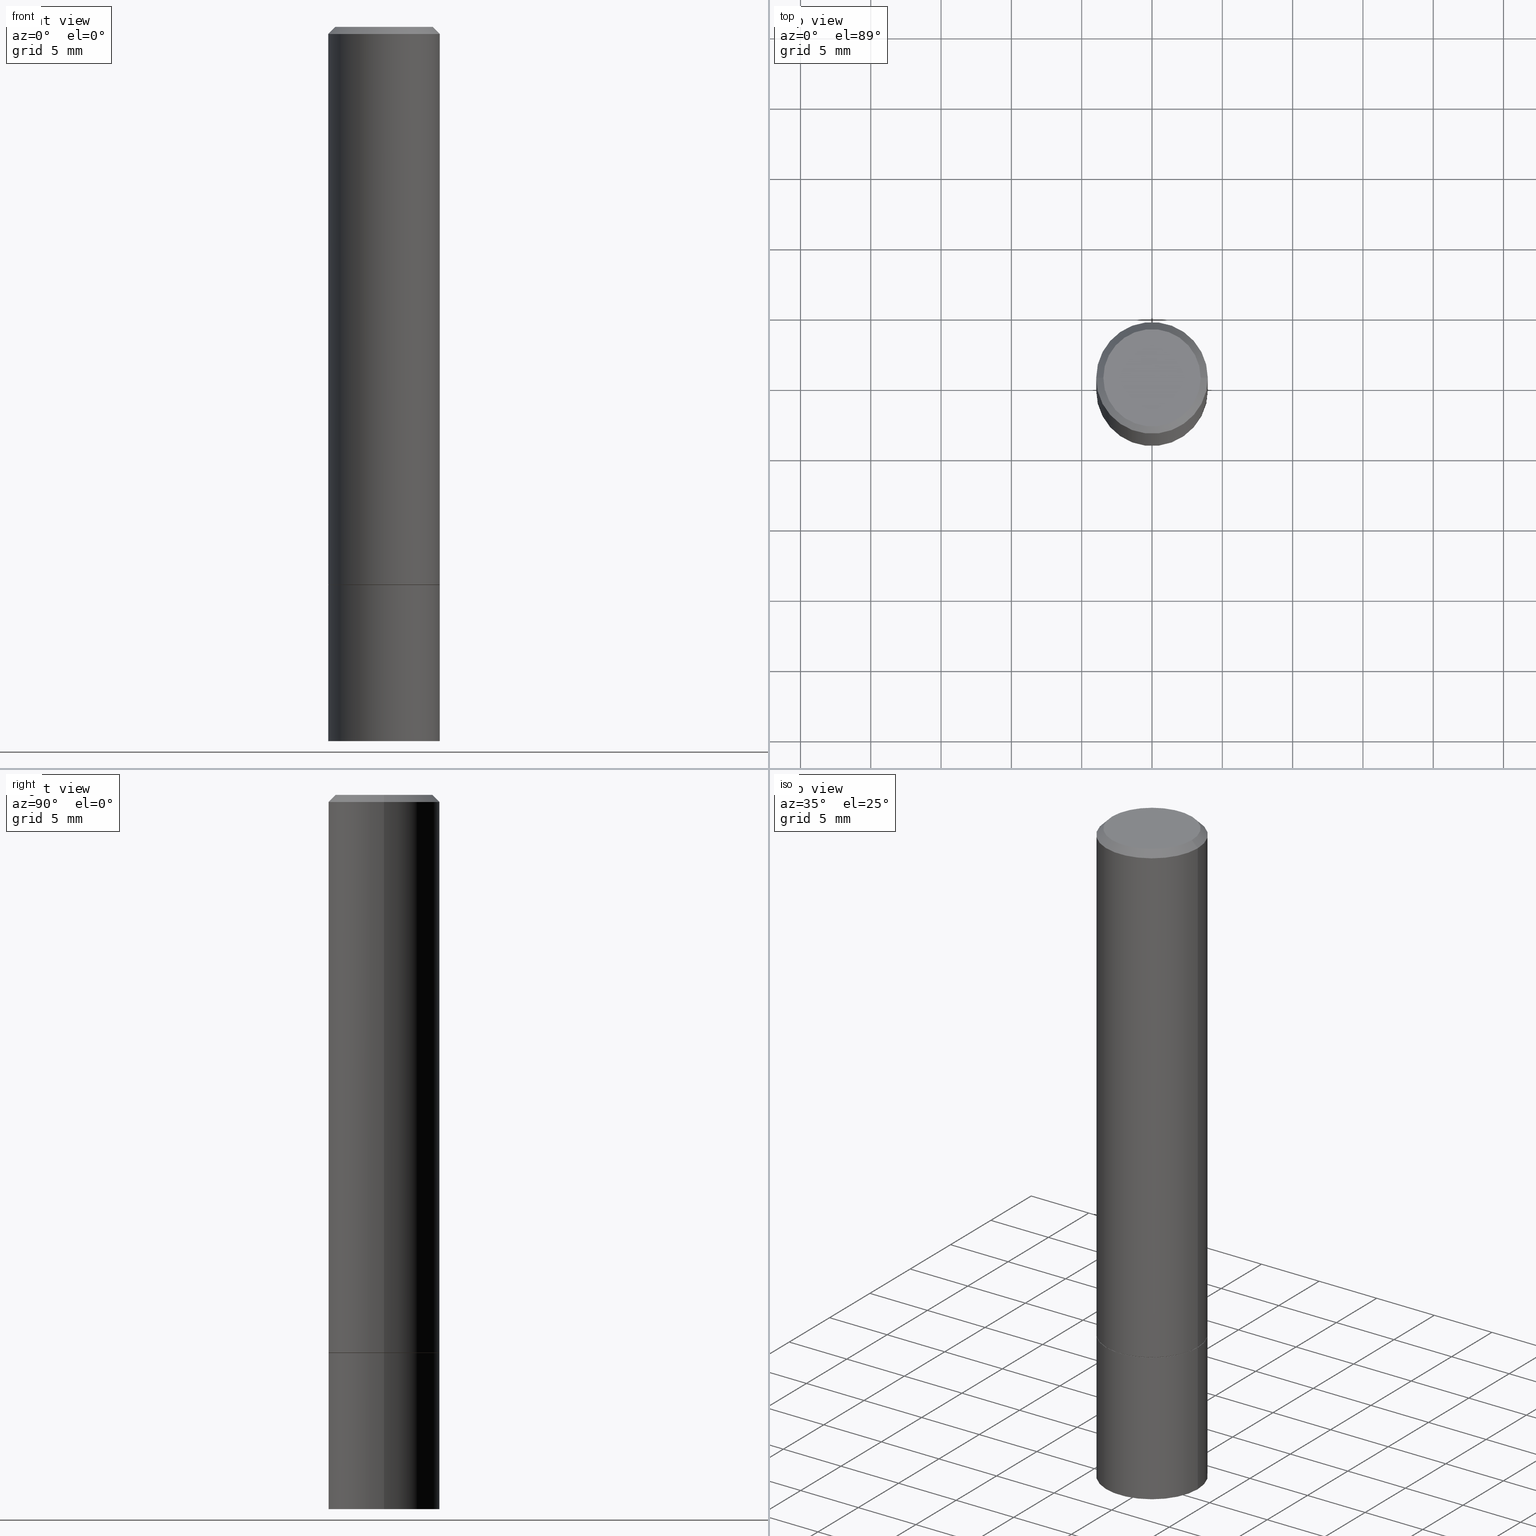
[diagram: canonical four-view strip — front | top / right | iso, engineering-drawing reading convention]
A machine part, canonical four-view strip (front | top / right | iso — engineering-drawing reading convention). The complete STEP part file that produces these views, byte-faithful:
ISO-10303-21;
HEADER;
FILE_DESCRIPTION (( 'STEP AP203' ),
    '1' );
FILE_NAME ('34706.STEP',
    '2024-02-27T16:48:15',
    ( '' ),
    ( '' ),
    'SwSTEP 2.0',
    'SolidWorks 2023',
    '' );
FILE_SCHEMA (( 'CONFIG_CONTROL_DESIGN' ));
ENDSEC;

DATA;
#1 = CARTESIAN_POINT ( 'NONE',  ( 0.1562499999999999167, -1.091087918388478385E-15, 7.619026212181144772E-30 ) ) ;
#2 = PLANE ( 'NONE',  #355 ) ;
#3 = EDGE_LOOP ( 'NONE', ( #161, #342, #144, #273 ) ) ;
#4 = DIRECTION ( 'NONE',  ( -1.000000000000000000, 6.982962677686266711E-15, 0.000000000000000000 ) ) ;
#5 = COORDINATED_UNIVERSAL_TIME_OFFSET ( 5, 0, .BEHIND. ) ;
#6 = CARTESIAN_POINT ( 'NONE',  ( -0.1562499999999998057, 1.021258291611614495E-15, -0.02000000000000008021 ) ) ;
#7 = CARTESIAN_POINT ( 'NONE',  ( 3.821045009664275932E-29, -5.455439591942415589E-15, -1.562500000000000000 ) ) ;
#8 = ORIENTED_EDGE ( 'NONE', *, *, #89, .T. ) ;
#9 = LOCAL_TIME ( 11, 48, 15.00000000000000000, #60 ) ;
#10 = DATE_TIME_ROLE ( 'creation_date' ) ;
#11 = EDGE_CURVE ( 'NONE', #170, #69, #219, .T. ) ;
#12 = ORIENTED_EDGE ( 'NONE', *, *, #314, .T. ) ;
#13 = ORIENTED_EDGE ( 'NONE', *, *, #330, .T. ) ;
#14 = APPLICATION_PROTOCOL_DEFINITION ( 'international standard', 'config_control_design', 1994, #174 ) ;
#15 = CALENDAR_DATE ( 2024, 27, 2 ) ;
#16 = AXIS2_PLACEMENT_3D ( 'NONE', #282, #23, #258 ) ;
#17 = ORIENTED_EDGE ( 'NONE', *, *, #86, .F. ) ;
#18 = EDGE_LOOP ( 'NONE', ( #74, #274, #294, #36 ) ) ;
#19 = DIRECTION ( 'NONE',  ( -2.445468806185136597E-29, 3.491481338843145583E-15, 1.000000000000000000 ) ) ;
#20 = AXIS2_PLACEMENT_3D ( 'NONE', #231, #181, #315 ) ;
#21 = CYLINDRICAL_SURFACE ( 'NONE', #285, 0.1562500000000000000 ) ;
#22 = DIRECTION ( 'NONE',  ( 1.000000000000000000, -6.982962677686269077E-15, 0.000000000000000000 ) ) ;
#23 = DIRECTION ( 'NONE',  ( -2.445468806185136597E-29, 3.491481338843145583E-15, 1.000000000000000000 ) ) ;
#24 = APPROVAL_PERSON_ORGANIZATION ( #220, #338, #104 ) ;
#25 = PRODUCT_RELATED_PRODUCT_CATEGORY ( 'detail', '', ( #238 ) ) ;
#26 = LINE ( 'NONE', #1, #249 ) ;
#27 = EDGE_LOOP ( 'NONE', ( #57, #306, #85, #284 ) ) ;
#28 = FACE_OUTER_BOUND ( 'NONE', #163, .T. ) ;
#29 = ADVANCED_FACE ( 'NONE', ( #73 ), #223, .F. ) ;
#30 = CARTESIAN_POINT ( 'NONE',  ( 0.1552499999999999991, -6.539544547653208748E-15, -1.562500000000000000 ) ) ;
#31 = DIRECTION ( 'NONE',  ( 2.438088387897960049E-29, -3.491481338843145188E-15, -1.000000000000000000 ) ) ;
#32 = AXIS2_PLACEMENT_3D ( 'NONE', #277, #225, #22 ) ;
#33 = AXIS2_PLACEMENT_3D ( 'NONE', #7, #266, #189 ) ;
#34 = AXIS2_PLACEMENT_3D ( 'NONE', #218, #37, #248 ) ;
#35 = DIRECTION ( 'NONE',  ( -2.445468806185136877E-29, 3.491481338843145188E-15, 1.000000000000000000 ) ) ;
#36 = ORIENTED_EDGE ( 'NONE', *, *, #177, .F. ) ;
#37 = DIRECTION ( 'NONE',  ( -2.445468806185136597E-29, 3.491481338843145583E-15, 1.000000000000000000 ) ) ;
#38 =( NAMED_UNIT ( * ) SI_UNIT ( $, .STERADIAN. ) SOLID_ANGLE_UNIT ( ) );
#39 = PERSON_AND_ORGANIZATION_ROLE ( 'creator' ) ;
#40 = PERSON_AND_ORGANIZATION ( #289, #67 ) ;
#41 = AXIS2_PLACEMENT_3D ( 'NONE', #246, #127, #42 ) ;
#42 = DIRECTION ( 'NONE',  ( 1.000000000000000000, 0.000000000000000000, 0.000000000000000000 ) ) ;
#43 = APPROVAL_PERSON_ORGANIZATION ( #50, #221, #276 ) ;
#44 = EDGE_LOOP ( 'NONE', ( #111, #99, #308, #17 ) ) ;
#45 = FACE_OUTER_BOUND ( 'NONE', #131, .T. ) ;
#46 = DATE_AND_TIME ( #118, #213 ) ;
#47 = ADVANCED_FACE ( 'NONE', ( #331 ), #272, .T. ) ;
#48 = CARTESIAN_POINT ( 'NONE',  ( 3.821045009664275932E-29, -5.455439591942415589E-15, -1.562500000000000000 ) ) ;
#49 = DIRECTION ( 'NONE',  ( 1.000000000000000000, -6.982962677686266711E-15, 0.000000000000000000 ) ) ;
#50 = PERSON_AND_ORGANIZATION ( #289, #67 ) ;
#51 = DIRECTION ( 'NONE',  ( 2.438088387897960049E-29, -3.491481338843145188E-15, -1.000000000000000000 ) ) ;
#52 = CARTESIAN_POINT ( 'NONE',  ( 0.1552499999999999991, -6.539544547653208748E-15, -1.562500000000000000 ) ) ;
#53 = DIRECTION ( 'NONE',  ( -2.445468806185136597E-29, 3.491481338843145583E-15, 1.000000000000000000 ) ) ;
#54 = AXIS2_PLACEMENT_3D ( 'NONE', #362, #275, #198 ) ;
#55 = DIRECTION ( 'NONE',  ( 2.438088387897960049E-29, -3.491481338843145188E-15, -1.000000000000000000 ) ) ;
#56 = EDGE_CURVE ( 'NONE', #61, #212, #200, .T. ) ;
#57 = ORIENTED_EDGE ( 'NONE', *, *, #330, .F. ) ;
#58 = CARTESIAN_POINT ( 'NONE',  ( 0.1562500000000000000, -1.091087918388479174E-15, 7.619026212181150377E-30 ) ) ;
#59 = LINE ( 'NONE', #318, #230 ) ;
#60 = COORDINATED_UNIVERSAL_TIME_OFFSET ( 5, 0, .BEHIND. ) ;
#61 = VERTEX_POINT ( 'NONE', #195 ) ;
#62 =( CONVERSION_BASED_UNIT ( 'INCH', #215 ) LENGTH_UNIT ( ) NAMED_UNIT ( #245 ) );
#63 = EDGE_CURVE ( 'NONE', #154, #240, #311, .T. ) ;
#64 = CIRCLE ( 'NONE', #305, 0.1562500000000000000 ) ;
#65 = FACE_OUTER_BOUND ( 'NONE', #267, .T. ) ;
#66 = CC_DESIGN_PERSON_AND_ORGANIZATION_ASSIGNMENT ( #242, #325, ( #238 ) ) ;
#67 = ORGANIZATION ( 'UNSPECIFIED', 'UNSPECIFIED', '' ) ;
#68 = EDGE_LOOP ( 'NONE', ( #106, #243, #12, #326 ) ) ;
#69 = VERTEX_POINT ( 'NONE', #172 ) ;
#70 = AXIS2_PLACEMENT_3D ( 'NONE', #229, #332, #49 ) ;
#71 = SHAPE_DEFINITION_REPRESENTATION ( #184, #346 ) ;
#72 = ORIENTED_EDGE ( 'NONE', *, *, #86, .T. ) ;
#73 = FACE_OUTER_BOUND ( 'NONE', #300, .T. ) ;
#74 = ORIENTED_EDGE ( 'NONE', *, *, #11, .T. ) ;
#75 = EDGE_CURVE ( 'NONE', #212, #61, #328, .T. ) ;
#76 = AXIS2_PLACEMENT_3D ( 'NONE', #357, #123, #192 ) ;
#77 = CARTESIAN_POINT ( 'NONE',  ( 3.821045009664275932E-29, -5.455439591942415589E-15, -1.562500000000000000 ) ) ;
#78 = FACE_OUTER_BOUND ( 'NONE', #93, .T. ) ;
#79 = CARTESIAN_POINT ( 'NONE',  ( -0.1562499999999999167, 1.110223024625155949E-15, -7.685836078523285555E-30 ) ) ;
#80 = LOCAL_TIME ( 11, 48, 15.00000000000000000, #96 ) ;
#81 = DIRECTION ( 'NONE',  ( -0.7071067811865471286, 2.468850131082252722E-15, -0.7071067811865479058 ) ) ;
#82 = VECTOR ( 'NONE', #35, 39.37007874015748143 ) ;
#83 = CARTESIAN_POINT ( 'NONE',  ( 3.821045009664275932E-29, -5.455439591942415589E-15, -1.562500000000000000 ) ) ;
#84 = DIRECTION ( 'NONE',  ( 1.000000000000000000, -6.982962677686268288E-15, 0.000000000000000000 ) ) ;
#85 = ORIENTED_EDGE ( 'NONE', *, *, #75, .T. ) ;
#86 = EDGE_CURVE ( 'NONE', #186, #320, #206, .T. ) ;
#87 = AXIS2_PLACEMENT_3D ( 'NONE', #193, #199, #333 ) ;
#88 = ORIENTED_EDGE ( 'NONE', *, *, #222, .T. ) ;
#89 = EDGE_CURVE ( 'NONE', #323, #154, #202, .T. ) ;
#90 = PERSON_AND_ORGANIZATION ( #289, #67 ) ;
#91 = APPROVAL_DATE_TIME ( #155, #107 ) ;
#92 = VERTEX_POINT ( 'NONE', #139 ) ;
#93 = EDGE_LOOP ( 'NONE', ( #132, #8, #303, #97 ) ) ;
#94 = VECTOR ( 'NONE', #336, 39.37007874015748143 ) ;
#95 = CALENDAR_DATE ( 2024, 27, 2 ) ;
#96 = COORDINATED_UNIVERSAL_TIME_OFFSET ( 5, 0, .BEHIND. ) ;
#97 = ORIENTED_EDGE ( 'NONE', *, *, #304, .F. ) ;
#98 = EDGE_CURVE ( 'NONE', #69, #170, #263, .T. ) ;
#99 = ORIENTED_EDGE ( 'NONE', *, *, #98, .T. ) ;
#100 = DIRECTION ( 'NONE',  ( -2.445468806185136597E-29, 3.491481338843145583E-15, 1.000000000000000000 ) ) ;
#101 = CC_DESIGN_PERSON_AND_ORGANIZATION_ASSIGNMENT ( #40, #270, ( #280 ) ) ;
#102 = CLOSED_SHELL ( 'NONE', ( #157, #241, #247, #47, #226, #140, #366, #160 ) ) ;
#103 = DIRECTION ( 'NONE',  ( 1.000000000000000000, -6.982962677686269077E-15, 0.000000000000000000 ) ) ;
#104 = APPROVAL_ROLE ( '' ) ;
#105 = APPROVAL_STATUS ( 'not_yet_approved' ) ;
#106 = ORIENTED_EDGE ( 'NONE', *, *, #164, .F. ) ;
#107 = APPROVAL ( #125, 'UNSPECIFIED' ) ;
#108 = SECURITY_CLASSIFICATION_LEVEL ( 'unclassified' ) ;
#109 = CARTESIAN_POINT ( 'NONE',  ( -0.1362499999999997324, 9.863434782231834374E-16, -6.775751096333127272E-30 ) ) ;
#110 = DIRECTION ( 'NONE',  ( -2.445468806185136877E-29, 3.491481338843145188E-15, 1.000000000000000000 ) ) ;
#111 = ORIENTED_EDGE ( 'NONE', *, *, #257, .F. ) ;
#112 = EDGE_CURVE ( 'NONE', #320, #186, #356, .T. ) ;
#113 = LINE ( 'NONE', #58, #82 ) ;
#114 = ORIENTED_EDGE ( 'NONE', *, *, #98, .F. ) ;
#115 = CC_DESIGN_APPROVAL ( #338, ( #239 ) ) ;
#116 = DIRECTION ( 'NONE',  ( 1.000000000000000000, -6.982962677686265133E-15, 4.876176775795935232E-29 ) ) ;
#117 = VECTOR ( 'NONE', #145, 39.37007874015748854 ) ;
#118 = CALENDAR_DATE ( 2024, 27, 2 ) ;
#119 = ORIENTED_EDGE ( 'NONE', *, *, #11, .F. ) ;
#120 = FACE_OUTER_BOUND ( 'NONE', #194, .T. ) ;
#121 = AXIS2_PLACEMENT_3D ( 'NONE', #83, #143, #343 ) ;
#122 = ORIENTED_EDGE ( 'NONE', *, *, #314, .F. ) ;
#123 = DIRECTION ( 'NONE',  ( -2.445468806185136597E-29, 3.491481338843145583E-15, 1.000000000000000000 ) ) ;
#124 = ADVANCED_FACE ( 'NONE', ( #227 ), #21, .T. ) ;
#125 = APPROVAL_STATUS ( 'not_yet_approved' ) ;
#126 = PERSON_AND_ORGANIZATION_ROLE ( 'design_supplier' ) ;
#127 = DIRECTION ( 'NONE',  ( 0.000000000000000000, 0.000000000000000000, 1.000000000000000000 ) ) ;
#128 = CIRCLE ( 'NONE', #76, 0.1362499999999997324 ) ;
#129 = DATE_TIME_ROLE ( 'classification_date' ) ;
#130 = UNCERTAINTY_MEASURE_WITH_UNIT (LENGTH_MEASURE( 1.000000000000000082E-05 ), #62, 'distance_accuracy_value', 'NONE');
#131 = EDGE_LOOP ( 'NONE', ( #250, #88, #209, #329 ) ) ;
#132 = ORIENTED_EDGE ( 'NONE', *, *, #138, .T. ) ;
#133 = DIRECTION ( 'NONE',  ( 1.000000000000000000, -6.982962677686269077E-15, 0.000000000000000000 ) ) ;
#134 = LOCAL_TIME ( 11, 48, 15.00000000000000000, #187 ) ;
#135 = CC_DESIGN_SECURITY_CLASSIFICATION ( #291, ( #239 ) ) ;
#136 = CALENDAR_DATE ( 2024, 27, 2 ) ;
#137 = CARTESIAN_POINT ( 'NONE',  ( 1.091087918388517236E-15, 0.1562499999999945322, -1.562500000000000666 ) ) ;
#138 = EDGE_CURVE ( 'NONE', #165, #323, #259, .T. ) ;
#139 = CARTESIAN_POINT ( 'NONE',  ( 0.1362499999999997324, -1.038262645562516547E-15, 6.957025900226683865E-30 ) ) ;
#140 = ADVANCED_FACE ( 'NONE', ( #45 ), #179, .T. ) ;
#141 = CARTESIAN_POINT ( 'NONE',  ( -0.1552499999999999991, -4.352321994674860057E-15, -1.562500000000000000 ) ) ;
#142 = DIRECTION ( 'NONE',  ( -2.445468806185136597E-29, 3.491481338843145583E-15, 1.000000000000000000 ) ) ;
#143 = DIRECTION ( 'NONE',  ( -2.445468806185136597E-29, 3.491481338843145583E-15, 1.000000000000000000 ) ) ;
#144 = ORIENTED_EDGE ( 'NONE', *, *, #197, .T. ) ;
#145 = DIRECTION ( 'NONE',  ( 0.7071067811865232589, -2.468850131082003836E-15, 0.7071067811865715536 ) ) ;
#146 = ORIENTED_EDGE ( 'NONE', *, *, #75, .F. ) ;
#147 = APPROVAL_PERSON_ORGANIZATION ( #268, #107, #296 ) ;
#148 = CARTESIAN_POINT ( 'NONE',  ( -0.1562500000000000000, -5.108978110189196442E-15, -1.562500000000000000 ) ) ;
#149 = LOCAL_TIME ( 11, 48, 15.00000000000000000, #5 ) ;
#150 = DIRECTION ( 'NONE',  ( -2.445468806185136597E-29, 3.491481338843145583E-15, 1.000000000000000000 ) ) ;
#151 = CONICAL_SURFACE ( 'NONE', #191, 0.1562499999999998057, 0.7853981633974477239 ) ;
#152 = DIRECTION ( 'NONE',  ( 1.000000000000000000, -6.982962677686269077E-15, 0.000000000000000000 ) ) ;
#153 = DATE_AND_TIME ( #15, #134 ) ;
#154 = VERTEX_POINT ( 'NONE', #290 ) ;
#155 = DATE_AND_TIME ( #95, #9 ) ;
#156 = CIRCLE ( 'NONE', #121, 0.1552499999999999991 ) ;
#157 = ADVANCED_FACE ( 'NONE', ( #78 ), #334, .T. ) ;
#158 = DIRECTION ( 'NONE',  ( -2.445468806185136597E-29, 3.491481338843145583E-15, 1.000000000000000000 ) ) ;
#159 = PLANE ( 'NONE',  #33 ) ;
#160 = ADVANCED_FACE ( 'NONE', ( #261 ), #211, .F. ) ;
#161 = ORIENTED_EDGE ( 'NONE', *, *, #287, .F. ) ;
#162 = AXIS2_PLACEMENT_3D ( 'NONE', #252, #100, #84 ) ;
#163 = EDGE_LOOP ( 'NONE', ( #119, #114 ) ) ;
#164 = EDGE_CURVE ( 'NONE', #154, #61, #286, .T. ) ;
#165 = VERTEX_POINT ( 'NONE', #30 ) ;
#166 = CALENDAR_DATE ( 2024, 27, 2 ) ;
#167 = DIRECTION ( 'NONE',  ( -1.000000000000000000, 6.982962677686265922E-15, -4.876176775795935793E-29 ) ) ;
#168 = EDGE_CURVE ( 'NONE', #240, #154, #64, .T. ) ;
#169 = CC_DESIGN_APPROVAL ( #107, ( #280 ) ) ;
#170 = VERTEX_POINT ( 'NONE', #264 ) ;
#171 = APPROVAL_DATE_TIME ( #173, #338 ) ;
#172 = CARTESIAN_POINT ( 'NONE',  ( -0.1562500000000000000, -5.108978110189196442E-15, -2.000000000000000000 ) ) ;
#173 = DATE_AND_TIME ( #166, #149 ) ;
#174 = APPLICATION_CONTEXT ( 'configuration controlled 3d designs of mechanical parts and assemblies' ) ;
#175 = DIRECTION ( 'NONE',  ( 1.000000000000000000, -6.982962677686266711E-15, 4.876176775795936353E-29 ) ) ;
#176 = COORDINATED_UNIVERSAL_TIME_OFFSET ( 5, 0, .BEHIND. ) ;
#177 = EDGE_CURVE ( 'NONE', #170, #320, #113, .T. ) ;
#178 = CARTESIAN_POINT ( 'NONE',  ( 1.091087918388527886E-15, 0.1562499999999930334, -2.000000000000000444 ) ) ;
#179 = CONICAL_SURFACE ( 'NONE', #162, 0.1552499999999999991, 0.7853981633974141952 ) ;
#180 = CARTESIAN_POINT ( 'NONE',  ( -0.1562500000000000000, 1.110223024625156540E-15, -7.685836078523291160E-30 ) ) ;
#181 = DIRECTION ( 'NONE',  ( -2.445468806185136597E-29, 3.491481338843145583E-15, 1.000000000000000000 ) ) ;
#182 = LINE ( 'NONE', #180, #340 ) ;
#183 = CC_DESIGN_PERSON_AND_ORGANIZATION_ASSIGNMENT ( #210, #126, ( #239 ) ) ;
#184 = PRODUCT_DEFINITION_SHAPE ( 'NONE', 'NONE',  #280 ) ;
#185 = AXIS2_PLACEMENT_3D ( 'NONE', #302, #158, #354 ) ;
#186 = VERTEX_POINT ( 'NONE', #148 ) ;
#187 = COORDINATED_UNIVERSAL_TIME_OFFSET ( 5, 0, .BEHIND. ) ;
#188 = VERTEX_POINT ( 'NONE', #109 ) ;
#189 = DIRECTION ( 'NONE',  ( 1.000000000000000000, -6.982962677686265922E-15, 4.876176775795935793E-29 ) ) ;
#190 =( NAMED_UNIT ( * ) PLANE_ANGLE_UNIT ( ) SI_UNIT ( $, .RADIAN. ) );
#191 = AXIS2_PLACEMENT_3D ( 'NONE', #317, #319, #4 ) ;
#192 = DIRECTION ( 'NONE',  ( 1.000000000000000000, -6.982962677686266711E-15, 4.876176775795936353E-29 ) ) ;
#193 = CARTESIAN_POINT ( 'NONE',  ( 4.890937612370273194E-29, -6.982962677686291165E-15, -2.000000000000000000 ) ) ;
#194 = EDGE_LOOP ( 'NONE', ( #358, #349, #146, #122 ) ) ;
#195 = CARTESIAN_POINT ( 'NONE',  ( -0.1562499999999998057, 1.021258291611614495E-15, -0.02000000000000008021 ) ) ;
#196 =( GEOMETRIC_REPRESENTATION_CONTEXT ( 3 ) GLOBAL_UNCERTAINTY_ASSIGNED_CONTEXT ( ( #130 ) ) GLOBAL_UNIT_ASSIGNED_CONTEXT ( ( #62, #190, #38 ) ) REPRESENTATION_CONTEXT ( 'NONE', 'WORKASPACE' ) );
#197 = EDGE_CURVE ( 'NONE', #188, #61, #205, .T. ) ;
#198 = DIRECTION ( 'NONE',  ( -1.000000000000000000, 6.982962677686266711E-15, 0.000000000000000000 ) ) ;
#199 = DIRECTION ( 'NONE',  ( -2.445468806185136597E-29, 3.491481338843145583E-15, 1.000000000000000000 ) ) ;
#200 = CIRCLE ( 'NONE', #214, 0.1562499999999998057 ) ;
#201 = AXIS2_PLACEMENT_3D ( 'NONE', #339, #31, #313 ) ;
#202 = LINE ( 'NONE', #141, #269 ) ;
#203 = DIRECTION ( 'NONE',  ( 1.000000000000000000, -6.982962677686268288E-15, 0.000000000000000000 ) ) ;
#204 = PERSON_AND_ORGANIZATION ( #289, #67 ) ;
#205 = LINE ( 'NONE', #6, #324 ) ;
#206 = CIRCLE ( 'NONE', #254, 0.1562500000000000000 ) ;
#207 = CARTESIAN_POINT ( 'NONE',  ( 0.1562499999999998057, -1.141782438928663724E-15, -0.02000000000000008021 ) ) ;
#208 = CARTESIAN_POINT ( 'NONE',  ( 0.1562500000000000000, -6.543036028992050967E-15, -1.561499999999999888 ) ) ;
#209 = ORIENTED_EDGE ( 'NONE', *, *, #304, .T. ) ;
#210 = PERSON_AND_ORGANIZATION ( #289, #67 ) ;
#211 = PLANE ( 'NONE',  #201 ) ;
#212 = VERTEX_POINT ( 'NONE', #207 ) ;
#213 = LOCAL_TIME ( 11, 48, 15.00000000000000000, #176 ) ;
#214 = AXIS2_PLACEMENT_3D ( 'NONE', #255, #228, #364 ) ;
#215 = LENGTH_MEASURE_WITH_UNIT ( LENGTH_MEASURE( 0.02539999999999999897 ), #244 );
#216 = CARTESIAN_POINT ( 'NONE',  ( -0.1552499999999999991, -4.347023540326636866E-15, -1.562500000000000000 ) ) ;
#217 = FACE_OUTER_BOUND ( 'NONE', #18, .T. ) ;
#218 = CARTESIAN_POINT ( 'NONE',  ( 0.000000000000000000, 0.000000000000000000, 0.000000000000000000 ) ) ;
#219 = CIRCLE ( 'NONE', #87, 0.1562500000000000000 ) ;
#220 = PERSON_AND_ORGANIZATION ( #289, #67 ) ;
#221 = APPROVAL ( #105, 'UNSPECIFIED' ) ;
#222 = EDGE_CURVE ( 'NONE', #323, #165, #156, .T. ) ;
#223 = PLANE ( 'NONE',  #361 ) ;
#224 = MANIFOLD_SOLID_BREP ( 'Body-Move/Copy2[2]', #102 ) ;
#225 = DIRECTION ( 'NONE',  ( -2.445468806185136597E-29, 3.491481338843145583E-15, 1.000000000000000000 ) ) ;
#226 = ADVANCED_FACE ( 'NONE', ( #262 ), #236, .T. ) ;
#227 = FACE_OUTER_BOUND ( 'NONE', #44, .T. ) ;
#228 = DIRECTION ( 'NONE',  ( -2.445468806185136597E-29, 3.491481338843145583E-15, 1.000000000000000000 ) ) ;
#229 = CARTESIAN_POINT ( 'NONE',  ( 4.890937612370293302E-31, -6.982962677686318726E-17, -0.02000000000000008021 ) ) ;
#230 = VECTOR ( 'NONE', #260, 39.37007874015748143 ) ;
#231 = CARTESIAN_POINT ( 'NONE',  ( 0.000000000000000000, 0.000000000000000000, 0.000000000000000000 ) ) ;
#232 = CYLINDRICAL_SURFACE ( 'NONE', #299, 0.1562499999999999167 ) ;
#233 = ORIENTED_EDGE ( 'NONE', *, *, #112, .T. ) ;
#234 = CARTESIAN_POINT ( 'NONE',  ( 3.821045009664275932E-29, -5.455439591942415589E-15, -1.562500000000000000 ) ) ;
#235 = AXIS2_PLACEMENT_3D ( 'NONE', #48, #19, #133 ) ;
#236 = CYLINDRICAL_SURFACE ( 'NONE', #20, 0.1562499999999999167 ) ;
#237 = FACE_OUTER_BOUND ( 'NONE', #27, .T. ) ;
#238 = PRODUCT ( '34706', '34706', '', ( #297 ) ) ;
#239 = PRODUCT_DEFINITION_FORMATION_WITH_SPECIFIED_SOURCE ( 'ANY', '', #238, .NOT_KNOWN. ) ;
#240 = VERTEX_POINT ( 'NONE', #208 ) ;
#241 = ADVANCED_FACE ( 'NONE', ( #120 ), #232, .T. ) ;
#242 = PERSON_AND_ORGANIZATION ( #289, #67 ) ;
#243 = ORIENTED_EDGE ( 'NONE', *, *, #63, .T. ) ;
#244 =( LENGTH_UNIT ( ) NAMED_UNIT ( * ) SI_UNIT ( $, .METRE. ) );
#245 = DIMENSIONAL_EXPONENTS ( 1.000000000000000000, 0.000000000000000000, 0.000000000000000000, 0.000000000000000000, 0.000000000000000000, 0.000000000000000000, 0.000000000000000000 ) ;
#246 = CARTESIAN_POINT ( 'NONE',  ( 0.000000000000000000, 0.000000000000000000, 0.000000000000000000 ) ) ;
#247 = ADVANCED_FACE ( 'NONE', ( #237 ), #151, .T. ) ;
#248 = DIRECTION ( 'NONE',  ( 1.000000000000000000, -6.982962677686266711E-15, 4.876176775795936353E-29 ) ) ;
#249 = VECTOR ( 'NONE', #110, 39.37007874015748143 ) ;
#250 = ORIENTED_EDGE ( 'NONE', *, *, #89, .F. ) ;
#251 = DATE_AND_TIME ( #136, #80 ) ;
#252 = CARTESIAN_POINT ( 'NONE',  ( 3.821045009664275932E-29, -5.455439591942415589E-15, -1.562500000000000000 ) ) ;
#253 = ORIENTED_EDGE ( 'NONE', *, *, #138, .F. ) ;
#254 = AXIS2_PLACEMENT_3D ( 'NONE', #77, #279, #103 ) ;
#255 = CARTESIAN_POINT ( 'NONE',  ( 4.890937612370293302E-31, -6.982962677686318726E-17, -0.02000000000000008021 ) ) ;
#256 = ORIENTED_EDGE ( 'NONE', *, *, #322, .T. ) ;
#257 = EDGE_CURVE ( 'NONE', #69, #186, #182, .T. ) ;
#258 = DIRECTION ( 'NONE',  ( 1.000000000000000000, -6.982962677686268288E-15, 0.000000000000000000 ) ) ;
#259 = CIRCLE ( 'NONE', #16, 0.1552499999999999991 ) ;
#260 = DIRECTION ( 'NONE',  ( 0.7071067811865471286, -7.319954787623254468E-15, -0.7071067811865479058 ) ) ;
#261 = FACE_OUTER_BOUND ( 'NONE', #265, .T. ) ;
#262 = FACE_OUTER_BOUND ( 'NONE', #68, .T. ) ;
#263 = CIRCLE ( 'NONE', #32, 0.1562500000000000000 ) ;
#264 = CARTESIAN_POINT ( 'NONE',  ( 0.1562500000000000000, -8.074050596074770339E-15, -2.000000000000000000 ) ) ;
#265 = EDGE_LOOP ( 'NONE', ( #256, #13 ) ) ;
#266 = DIRECTION ( 'NONE',  ( -2.438088387897960049E-29, 3.491481338843145188E-15, 1.000000000000000000 ) ) ;
#267 = EDGE_LOOP ( 'NONE', ( #253, #350 ) ) ;
#268 = PERSON_AND_ORGANIZATION ( #289, #67 ) ;
#269 = VECTOR ( 'NONE', #278, 39.37007874015748854 ) ;
#270 = PERSON_AND_ORGANIZATION_ROLE ( 'creator' ) ;
#271 = CYLINDRICAL_SURFACE ( 'NONE', #34, 0.1562500000000000000 ) ;
#272 = CONICAL_SURFACE ( 'NONE', #54, 0.1562499999999998057, 0.7853981633974477239 ) ;
#273 = ORIENTED_EDGE ( 'NONE', *, *, #56, .T. ) ;
#274 = ORIENTED_EDGE ( 'NONE', *, *, #257, .T. ) ;
#275 = DIRECTION ( 'NONE',  ( 2.445468806185136597E-29, -3.491481338843145583E-15, -1.000000000000000000 ) ) ;
#276 = APPROVAL_ROLE ( '' ) ;
#277 = CARTESIAN_POINT ( 'NONE',  ( 4.890937612370273194E-29, -6.982962677686291165E-15, -2.000000000000000000 ) ) ;
#278 = DIRECTION ( 'NONE',  ( -0.7071067811865232589, 7.493145998870265808E-15, 0.7071067811865715536 ) ) ;
#279 = DIRECTION ( 'NONE',  ( -2.445468806185136597E-29, 3.491481338843145583E-15, 1.000000000000000000 ) ) ;
#280 = PRODUCT_DEFINITION ( 'UNKNOWN', '', #239, #347 ) ;
#281 = APPLICATION_CONTEXT ( 'configuration controlled 3d designs of mechanical parts and assemblies' ) ;
#282 = CARTESIAN_POINT ( 'NONE',  ( 3.821045009664275932E-29, -5.455439591942415589E-15, -1.562500000000000000 ) ) ;
#283 = DIRECTION ( 'NONE',  ( -1.000000000000000000, 6.982962677686265922E-15, -4.876176775795935793E-29 ) ) ;
#284 = ORIENTED_EDGE ( 'NONE', *, *, #197, .F. ) ;
#285 = AXIS2_PLACEMENT_3D ( 'NONE', #363, #312, #175 ) ;
#286 = LINE ( 'NONE', #79, #94 ) ;
#287 = EDGE_CURVE ( 'NONE', #92, #212, #59, .T. ) ;
#288 = CARTESIAN_POINT ( 'NONE',  ( 0.000000000000000000, 0.000000000000000000, 0.000000000000000000 ) ) ;
#289 = PERSON ( 'UNSPECIFIED', 'UNSPECIFIED', 'UNSPECIFIED', ('UNSPECIFIED'), ('UNSPECIFIED'), ('UNSPECIFIED') ) ;
#290 = CARTESIAN_POINT ( 'NONE',  ( -0.1562500000000000000, -1.650665844065059428E-15, -1.561499999999999888 ) ) ;
#291 = SECURITY_CLASSIFICATION ( '', '', #108 ) ;
#292 = CIRCLE ( 'NONE', #185, 0.1362499999999997324 ) ;
#293 = CARTESIAN_POINT ( 'NONE',  ( 3.818599540858090890E-29, -5.451948110603571793E-15, -1.561499999999999888 ) ) ;
#294 = ORIENTED_EDGE ( 'NONE', *, *, #112, .F. ) ;
#295 = CC_DESIGN_DATE_AND_TIME_ASSIGNMENT ( #153, #10, ( #280 ) ) ;
#296 = APPROVAL_ROLE ( '' ) ;
#297 = MECHANICAL_CONTEXT ( 'NONE', #281, 'mechanical' ) ;
#298 = CC_DESIGN_APPROVAL ( #221, ( #291 ) ) ;
#299 = AXIS2_PLACEMENT_3D ( 'NONE', #288, #53, #116 ) ;
#300 = EDGE_LOOP ( 'NONE', ( #233, #72 ) ) ;
#301 = CC_DESIGN_DATE_AND_TIME_ASSIGNMENT ( #46, #129, ( #291 ) ) ;
#302 = CARTESIAN_POINT ( 'NONE',  ( 0.000000000000000000, 0.000000000000000000, 0.000000000000000000 ) ) ;
#303 = ORIENTED_EDGE ( 'NONE', *, *, #168, .F. ) ;
#304 = EDGE_CURVE ( 'NONE', #165, #240, #335, .T. ) ;
#305 = AXIS2_PLACEMENT_3D ( 'NONE', #293, #150, #152 ) ;
#306 = ORIENTED_EDGE ( 'NONE', *, *, #287, .T. ) ;
#307 = CC_DESIGN_PERSON_AND_ORGANIZATION_ASSIGNMENT ( #90, #39, ( #239 ) ) ;
#308 = ORIENTED_EDGE ( 'NONE', *, *, #177, .T. ) ;
#309 = DIRECTION ( 'NONE',  ( 1.000000000000000000, -6.982962677686269077E-15, 0.000000000000000000 ) ) ;
#310 = ADVANCED_FACE ( 'NONE', ( #28 ), #2, .T. ) ;
#311 = CIRCLE ( 'NONE', #321, 0.1562500000000000000 ) ;
#312 = DIRECTION ( 'NONE',  ( -2.445468806185136597E-29, 3.491481338843145583E-15, 1.000000000000000000 ) ) ;
#313 = DIRECTION ( 'NONE',  ( -1.000000000000000000, 6.982962677686265922E-15, -4.876176775795935793E-29 ) ) ;
#314 = EDGE_CURVE ( 'NONE', #240, #212, #26, .T. ) ;
#315 = DIRECTION ( 'NONE',  ( 1.000000000000000000, -6.982962677686265133E-15, 4.876176775795935232E-29 ) ) ;
#316 = CLOSED_SHELL ( 'NONE', ( #351, #310, #29, #124 ) ) ;
#317 = CARTESIAN_POINT ( 'NONE',  ( 4.890937612370293302E-31, -6.982962677686318726E-17, -0.02000000000000008021 ) ) ;
#318 = CARTESIAN_POINT ( 'NONE',  ( 0.1562499999999998057, -1.141782438928663724E-15, -0.02000000000000008021 ) ) ;
#319 = DIRECTION ( 'NONE',  ( 2.445468806185136597E-29, -3.491481338843145583E-15, -1.000000000000000000 ) ) ;
#320 = VERTEX_POINT ( 'NONE', #352 ) ;
#321 = AXIS2_PLACEMENT_3D ( 'NONE', #360, #142, #309 ) ;
#322 = EDGE_CURVE ( 'NONE', #188, #92, #128, .T. ) ;
#323 = VERTEX_POINT ( 'NONE', #216 ) ;
#324 = VECTOR ( 'NONE', #81, 39.37007874015748143 ) ;
#325 = PERSON_AND_ORGANIZATION_ROLE ( 'design_owner' ) ;
#326 = ORIENTED_EDGE ( 'NONE', *, *, #56, .F. ) ;
#327 = CC_DESIGN_PERSON_AND_ORGANIZATION_ASSIGNMENT ( #204, #353, ( #291 ) ) ;
#328 = CIRCLE ( 'NONE', #70, 0.1562499999999998057 ) ;
#329 = ORIENTED_EDGE ( 'NONE', *, *, #63, .F. ) ;
#330 = EDGE_CURVE ( 'NONE', #92, #188, #292, .T. ) ;
#331 = FACE_OUTER_BOUND ( 'NONE', #3, .T. ) ;
#332 = DIRECTION ( 'NONE',  ( -2.445468806185136597E-29, 3.491481338843145583E-15, 1.000000000000000000 ) ) ;
#333 = DIRECTION ( 'NONE',  ( 1.000000000000000000, -6.982962677686269077E-15, 0.000000000000000000 ) ) ;
#334 = CONICAL_SURFACE ( 'NONE', #345, 0.1552499999999999991, 0.7853981633974141952 ) ;
#335 = LINE ( 'NONE', #52, #117 ) ;
#336 = DIRECTION ( 'NONE',  ( -2.445468806185136877E-29, 3.491481338843145188E-15, 1.000000000000000000 ) ) ;
#337 = MANIFOLD_SOLID_BREP ( 'Body-Move/Copy2[1]', #316 ) ;
#338 = APPROVAL ( #348, 'UNSPECIFIED' ) ;
#339 = CARTESIAN_POINT ( 'NONE',  ( 9.514286648347519855E-16, 0.1362499999999997324, -4.757143324173776691E-16 ) ) ;
#340 = VECTOR ( 'NONE', #341, 39.37007874015748143 ) ;
#341 = DIRECTION ( 'NONE',  ( -2.445468806185136877E-29, 3.491481338843145188E-15, 1.000000000000000000 ) ) ;
#342 = ORIENTED_EDGE ( 'NONE', *, *, #322, .F. ) ;
#343 = DIRECTION ( 'NONE',  ( 1.000000000000000000, -6.982962677686268288E-15, 0.000000000000000000 ) ) ;
#344 = APPLICATION_PROTOCOL_DEFINITION ( 'international standard', 'config_control_design', 1994, #281 ) ;
#345 = AXIS2_PLACEMENT_3D ( 'NONE', #234, #365, #203 ) ;
#346 = ADVANCED_BREP_SHAPE_REPRESENTATION ( '34706', ( #337, #224, #41 ), #196 ) ;
#347 = DESIGN_CONTEXT ( 'detailed design', #174, 'design' ) ;
#348 = APPROVAL_STATUS ( 'not_yet_approved' ) ;
#349 = ORIENTED_EDGE ( 'NONE', *, *, #164, .T. ) ;
#350 = ORIENTED_EDGE ( 'NONE', *, *, #222, .F. ) ;
#351 = ADVANCED_FACE ( 'NONE', ( #217 ), #271, .T. ) ;
#352 = CARTESIAN_POINT ( 'NONE',  ( 0.1562500000000000000, -6.546527510330894763E-15, -1.562500000000000000 ) ) ;
#353 = PERSON_AND_ORGANIZATION_ROLE ( 'classification_officer' ) ;
#354 = DIRECTION ( 'NONE',  ( 1.000000000000000000, -6.982962677686266711E-15, 4.876176775795936353E-29 ) ) ;
#355 = AXIS2_PLACEMENT_3D ( 'NONE', #178, #55, #283 ) ;
#356 = CIRCLE ( 'NONE', #235, 0.1562500000000000000 ) ;
#357 = CARTESIAN_POINT ( 'NONE',  ( 0.000000000000000000, 0.000000000000000000, 0.000000000000000000 ) ) ;
#358 = ORIENTED_EDGE ( 'NONE', *, *, #168, .T. ) ;
#359 = APPROVAL_DATE_TIME ( #251, #221 ) ;
#360 = CARTESIAN_POINT ( 'NONE',  ( 3.818599540858090890E-29, -5.451948110603571793E-15, -1.561499999999999888 ) ) ;
#361 = AXIS2_PLACEMENT_3D ( 'NONE', #137, #51, #167 ) ;
#362 = CARTESIAN_POINT ( 'NONE',  ( 4.890937612370293302E-31, -6.982962677686318726E-17, -0.02000000000000008021 ) ) ;
#363 = CARTESIAN_POINT ( 'NONE',  ( 0.000000000000000000, 0.000000000000000000, 0.000000000000000000 ) ) ;
#364 = DIRECTION ( 'NONE',  ( 1.000000000000000000, -6.982962677686266711E-15, 0.000000000000000000 ) ) ;
#365 = DIRECTION ( 'NONE',  ( -2.445468806185136597E-29, 3.491481338843145583E-15, 1.000000000000000000 ) ) ;
#366 = ADVANCED_FACE ( 'NONE', ( #65 ), #159, .F. ) ;
ENDSEC;
END-ISO-10303-21;
